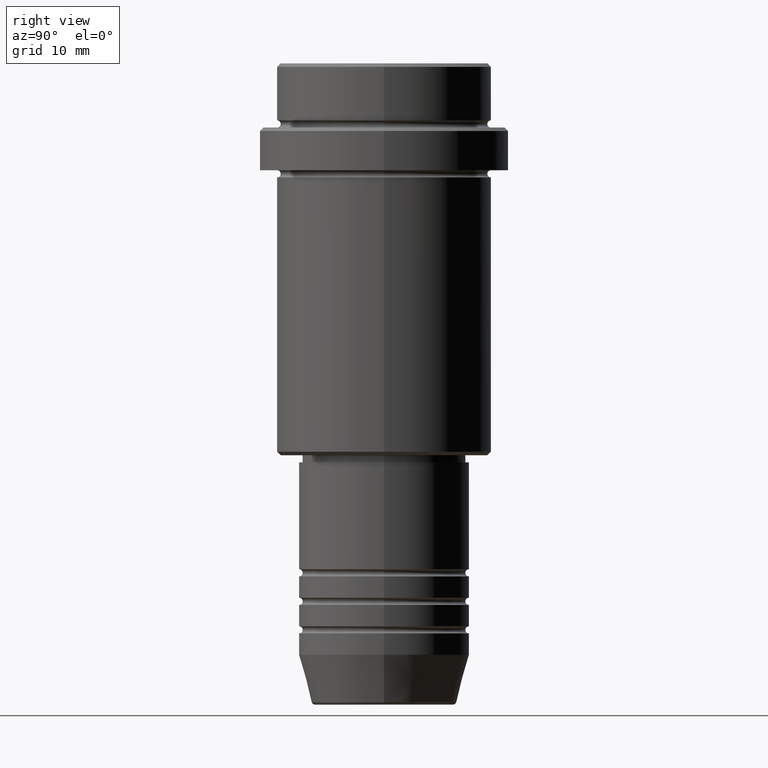
[diagram: clean part render]
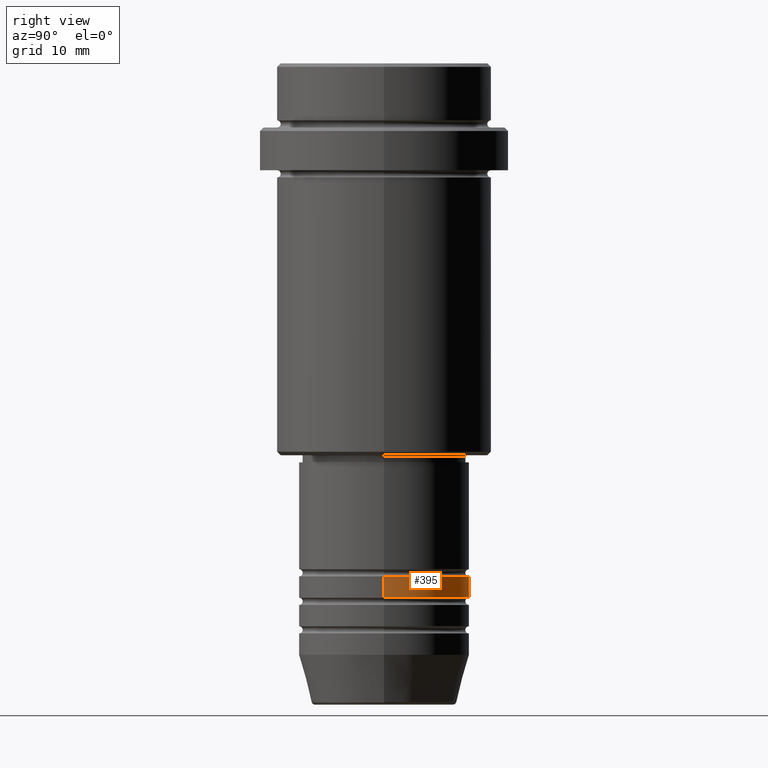
[diagram: same view with one face highlighted and labeled with its STEP entity id]
A machine part, right view. The second image highlights one B-rep face of the part: STEP entity #395.
In plain terms, the highlighted cylindrical surface (partial cylindrical patch) has radius 12 mm, axis along (-0, -0, 1).
Its self-contained STEP definition (entity closure, byte-faithful):
#4 = CIRCLE ( 'NONE', #1404, 12.00000000000000000 ) ;
#107 = ORIENTED_EDGE ( 'NONE', *, *, #1056, .F. ) ;
#171 = CARTESIAN_POINT ( 'NONE',  ( -12.00000000000000000, 1.469576158976823947E-15, -71.99999999999990052 ) ) ;
#215 = DIRECTION ( 'NONE',  ( 1.000000000000000000, 0.000000000000000000, 0.000000000000000000 ) ) ;
#304 = VERTEX_POINT ( 'NONE', #171 ) ;
#334 = VECTOR ( 'NONE', #399, 1000.000000000000000 ) ;
#395 = ADVANCED_FACE ( 'NONE', ( #1366 ), #1157, .T. ) ;
#399 = DIRECTION ( 'NONE',  ( -0.000000000000000000, -0.000000000000000000, 1.000000000000000000 ) ) ;
#407 = CIRCLE ( 'NONE', #540, 12.00000000000000000 ) ;
#413 = VERTEX_POINT ( 'NONE', #1188 ) ;
#415 = DIRECTION ( 'NONE',  ( -0.000000000000000000, -0.000000000000000000, 1.000000000000000000 ) ) ;
#449 = VERTEX_POINT ( 'NONE', #862 ) ;
#486 = ORIENTED_EDGE ( 'NONE', *, *, #771, .T. ) ;
#498 = AXIS2_PLACEMENT_3D ( 'NONE', #1391, #415, #844 ) ;
#504 = EDGE_CURVE ( 'NONE', #413, #449, #407, .T. ) ;
#534 = DIRECTION ( 'NONE',  ( -0.000000000000000000, -0.000000000000000000, 1.000000000000000000 ) ) ;
#540 = AXIS2_PLACEMENT_3D ( 'NONE', #1123, #1224, #779 ) ;
#749 = DIRECTION ( 'NONE',  ( -0.000000000000000000, -0.000000000000000000, 1.000000000000000000 ) ) ;
#769 = ORIENTED_EDGE ( 'NONE', *, *, #1008, .F. ) ;
#771 = EDGE_CURVE ( 'NONE', #449, #304, #1401, .T. ) ;
#779 = DIRECTION ( 'NONE',  ( 1.000000000000000000, 0.000000000000000000, 0.000000000000000000 ) ) ;
#837 = VECTOR ( 'NONE', #534, 1000.000000000000000 ) ;
#844 = DIRECTION ( 'NONE',  ( 1.000000000000000000, 0.000000000000000000, 0.000000000000000000 ) ) ;
#862 = CARTESIAN_POINT ( 'NONE',  ( -12.00000000000000000, 1.469576158976823947E-15, -74.99999999999990052 ) ) ;
#941 = CARTESIAN_POINT ( 'NONE',  ( 12.00000000000000000, 0.000000000000000000, -71.99999999999990052 ) ) ;
#963 = CARTESIAN_POINT ( 'NONE',  ( 0.000000000000000000, 0.000000000000000000, -71.99999999999990052 ) ) ;
#1008 = EDGE_CURVE ( 'NONE', #413, #1403, #1168, .T. ) ;
#1056 = EDGE_CURVE ( 'NONE', #1403, #304, #4, .T. ) ;
#1123 = CARTESIAN_POINT ( 'NONE',  ( 0.000000000000000000, 0.000000000000000000, -74.99999999999990052 ) ) ;
#1157 = CYLINDRICAL_SURFACE ( 'NONE', #498, 12.00000000000000000 ) ;
#1168 = LINE ( 'NONE', #1278, #334 ) ;
#1172 = CARTESIAN_POINT ( 'NONE',  ( -12.00000000000000000, 1.469576158976823947E-15, 0.000000000000000000 ) ) ;
#1188 = CARTESIAN_POINT ( 'NONE',  ( 12.00000000000000000, 0.000000000000000000, -74.99999999999990052 ) ) ;
#1224 = DIRECTION ( 'NONE',  ( -0.000000000000000000, -0.000000000000000000, 1.000000000000000000 ) ) ;
#1278 = CARTESIAN_POINT ( 'NONE',  ( 12.00000000000000000, 0.000000000000000000, 0.000000000000000000 ) ) ;
#1284 = ORIENTED_EDGE ( 'NONE', *, *, #504, .T. ) ;
#1317 = EDGE_LOOP ( 'NONE', ( #1284, #486, #107, #769 ) ) ;
#1366 = FACE_OUTER_BOUND ( 'NONE', #1317, .T. ) ;
#1391 = CARTESIAN_POINT ( 'NONE',  ( 0.000000000000000000, 0.000000000000000000, 0.000000000000000000 ) ) ;
#1401 = LINE ( 'NONE', #1172, #837 ) ;
#1403 = VERTEX_POINT ( 'NONE', #941 ) ;
#1404 = AXIS2_PLACEMENT_3D ( 'NONE', #963, #749, #215 ) ;